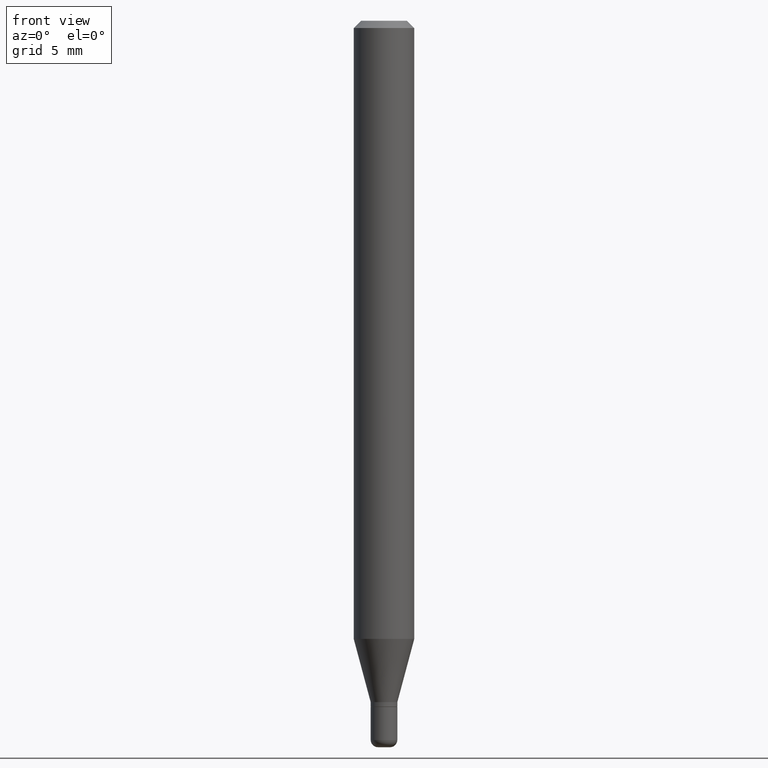
[diagram: clean part render]
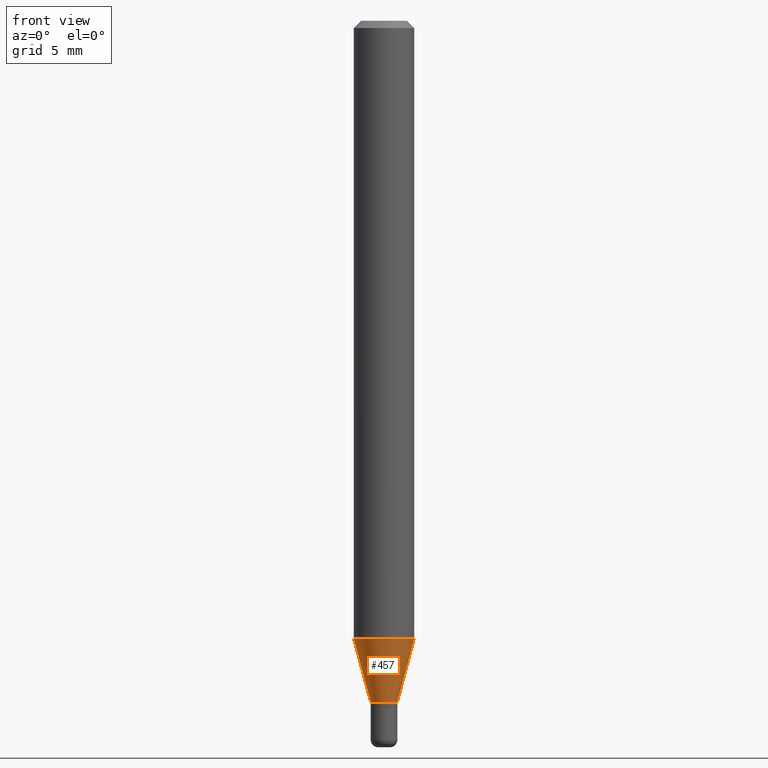
[diagram: same view with one face highlighted and labeled with its STEP entity id]
A machine part, front view. The second image highlights one B-rep face of the part: STEP entity #457.
In plain terms, the highlighted conical surface has half-angle 15 deg.
Its self-contained STEP definition (entity closure, byte-faithful):
#59 = LINE ( 'NONE', #384, #251 ) ;
#75 = DIRECTION ( 'NONE',  ( 1.000000000000000000, -6.982962677686277755E-15, 0.000000000000000000 ) ) ;
#82 = DIRECTION ( 'NONE',  ( 0.2588190451025211281, 1.565188264969622954E-15, 0.9659258262890679791 ) ) ;
#102 = VERTEX_POINT ( 'NONE', #375 ) ;
#107 = ORIENTED_EDGE ( 'NONE', *, *, #462, .T. ) ;
#114 = CARTESIAN_POINT ( 'NONE',  ( 3.440774610302487541E-29, -4.912514243752305891E-15, -1.407000000000000028 ) ) ;
#141 = DIRECTION ( 'NONE',  ( 1.000000000000000000, -6.982962677686277755E-15, 0.000000000000000000 ) ) ;
#148 = FACE_OUTER_BOUND ( 'NONE', #428, .T. ) ;
#170 = DIRECTION ( 'NONE',  ( -2.445468806185136597E-29, 3.491481338843145583E-15, 1.000000000000000000 ) ) ;
#174 = CONICAL_SURFACE ( 'NONE', #298, 0.02750000000000000708, 0.2617993877991498519 ) ;
#176 = ORIENTED_EDGE ( 'NONE', *, *, #243, .T. ) ;
#192 = AXIS2_PLACEMENT_3D ( 'NONE', #437, #170, #407 ) ;
#208 = ORIENTED_EDGE ( 'NONE', *, *, #473, .F. ) ;
#220 = CARTESIAN_POINT ( 'NONE',  ( 3.440774610302487541E-29, -4.912514243752305891E-15, -1.407000000000000028 ) ) ;
#237 = EDGE_CURVE ( 'NONE', #341, #329, #59, .T. ) ;
#243 = EDGE_CURVE ( 'NONE', #341, #434, #374, .T. ) ;
#251 = VECTOR ( 'NONE', #257, 39.37007874015748854 ) ;
#256 = ORIENTED_EDGE ( 'NONE', *, *, #237, .F. ) ;
#257 = DIRECTION ( 'NONE',  ( -0.2588190451025211281, 5.211531920934547886E-15, 0.9659258262890679791 ) ) ;
#262 = CIRCLE ( 'NONE', #192, 0.06250000000000000000 ) ;
#274 = LINE ( 'NONE', #363, #405 ) ;
#298 = AXIS2_PLACEMENT_3D ( 'NONE', #114, #432, #75 ) ;
#329 = VERTEX_POINT ( 'NONE', #468 ) ;
#341 = VERTEX_POINT ( 'NONE', #512 ) ;
#363 = CARTESIAN_POINT ( 'NONE',  ( 0.02750000000000000708, -5.104545717388678383E-15, -1.407000000000000028 ) ) ;
#374 = CIRCLE ( 'NONE', #436, 0.02750000000000000708 ) ;
#375 = CARTESIAN_POINT ( 'NONE',  ( 0.06250000000000000000, -4.892885909849255447E-15, -1.276378221735089635 ) ) ;
#384 = CARTESIAN_POINT ( 'NONE',  ( -0.02750000000000000708, -4.717114991418277772E-15, -1.407000000000000028 ) ) ;
#405 = VECTOR ( 'NONE', #82, 39.37007874015748854 ) ;
#407 = DIRECTION ( 'NONE',  ( 1.000000000000000000, -6.982962677686262766E-15, 0.000000000000000000 ) ) ;
#428 = EDGE_LOOP ( 'NONE', ( #256, #176, #107, #208 ) ) ;
#432 = DIRECTION ( 'NONE',  ( -2.445468806185136597E-29, 3.491481338843145583E-15, 1.000000000000000000 ) ) ;
#434 = VERTEX_POINT ( 'NONE', #467 ) ;
#436 = AXIS2_PLACEMENT_3D ( 'NONE', #220, #504, #141 ) ;
#437 = CARTESIAN_POINT ( 'NONE',  ( 3.121343126147216904E-29, -4.456450742493864567E-15, -1.276378221735089635 ) ) ;
#457 = ADVANCED_FACE ( 'NONE', ( #148 ), #174, .T. ) ;
#462 = EDGE_CURVE ( 'NONE', #434, #102, #274, .T. ) ;
#467 = CARTESIAN_POINT ( 'NONE',  ( 0.02750000000000000708, -5.104545717388678383E-15, -1.407000000000000028 ) ) ;
#468 = CARTESIAN_POINT ( 'NONE',  ( -0.06250000000000000000, -4.012361532643800373E-15, -1.276378221735089635 ) ) ;
#473 = EDGE_CURVE ( 'NONE', #329, #102, #262, .T. ) ;
#504 = DIRECTION ( 'NONE',  ( -2.445468806185136597E-29, 3.491481338843145583E-15, 1.000000000000000000 ) ) ;
#512 = CARTESIAN_POINT ( 'NONE',  ( -0.02750000000000000708, -4.364738262031039467E-15, -1.407000000000000028 ) ) ;